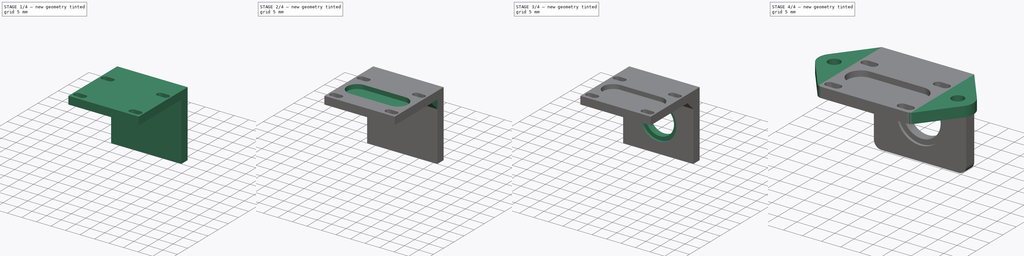
[diagram: build sequence overview — one tinted view per stage of 4, left to right]
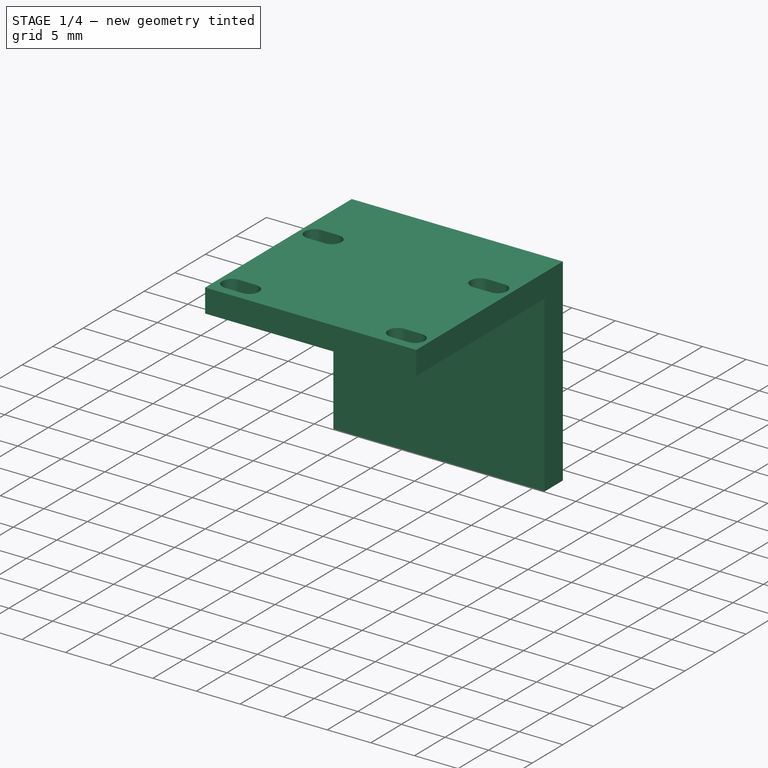
[diagram: stage 1 of 4 — iso view after this stage's code; geometry added in this stage tinted green]
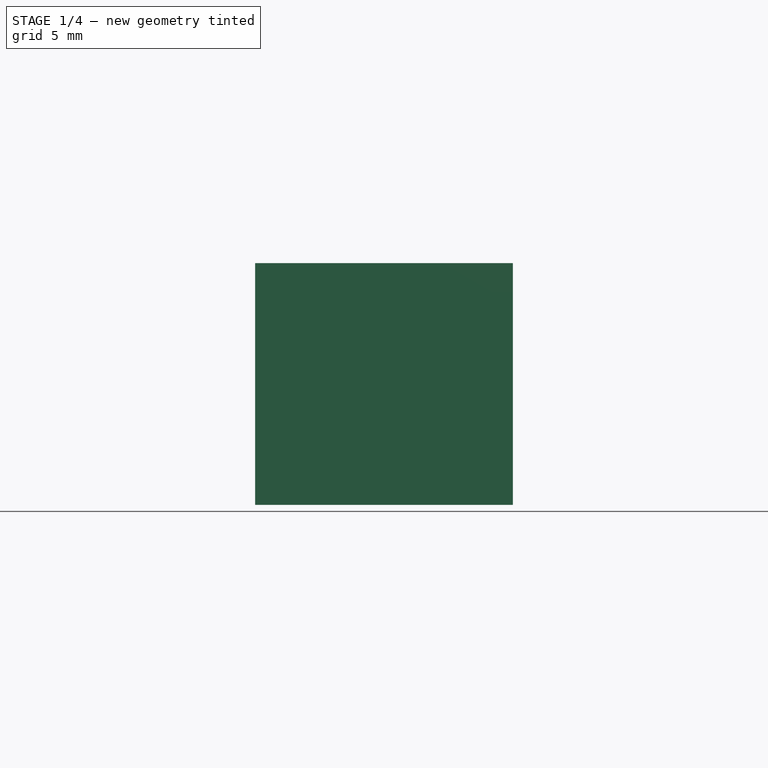
[diagram: stage 1 of 4 — front view after this stage's code; geometry added in this stage tinted green]
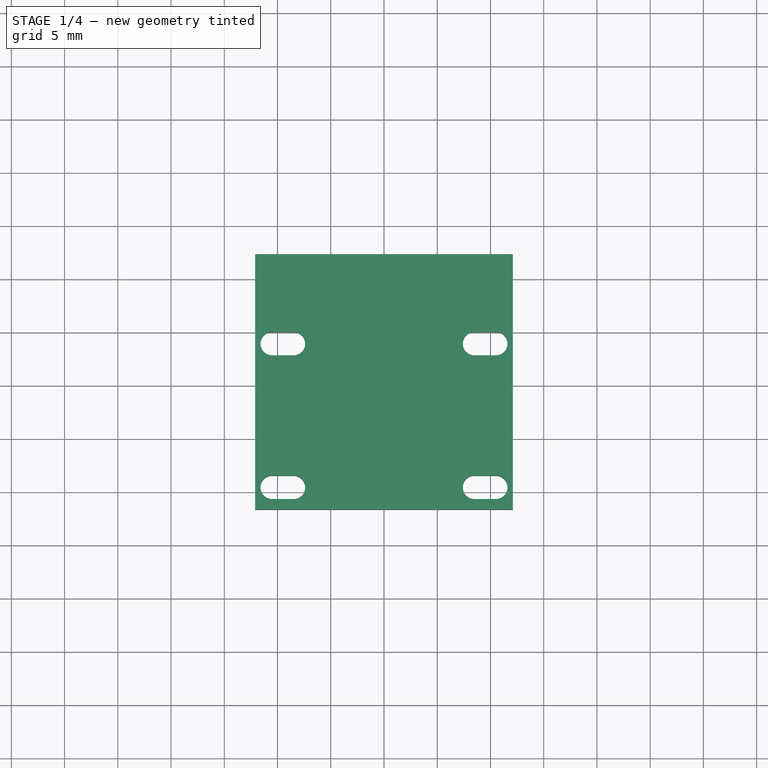
[diagram: stage 1 of 4 — top view after this stage's code; geometry added in this stage tinted green]
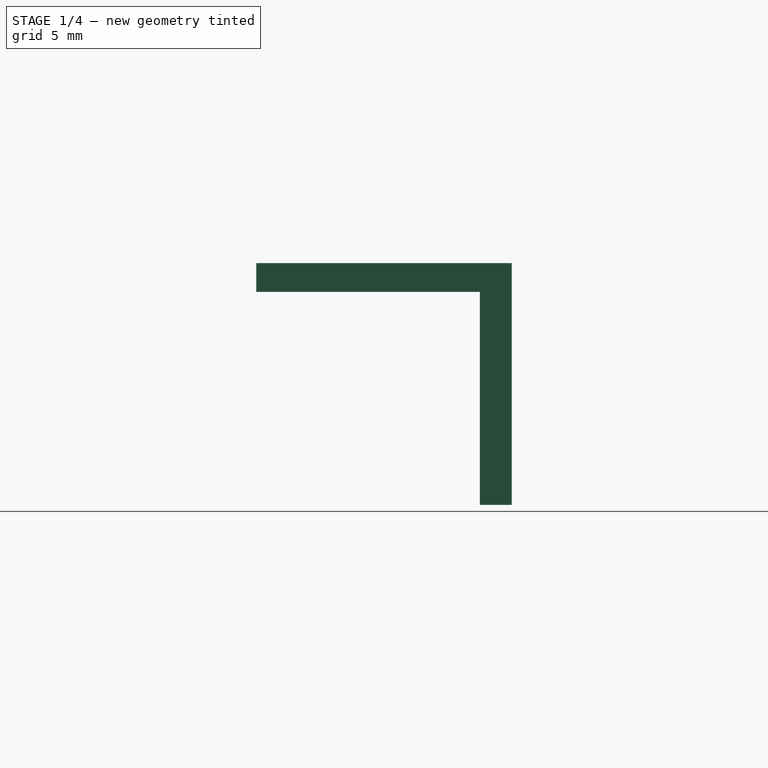
[diagram: stage 1 of 4 — right view after this stage's code; geometry added in this stage tinted green]
FCSTD DOCUMENT  (FreeCAD 0.20R29603 (Git))
Label: case-cam-base
License: All rights reserved
LicenseURL: http://en.wikipedia.org/wiki/All_rights_reserved
objects: Sketcher::SketchObject×8, PartDesign::Pocket×5, PartDesign::Pad×3, PartDesign::Chamfer×1, PartDesign::Fillet×1, PartDesign::Body×1
note: 29 computed .brp shape members not serialized (recipe doc carries the construction recipe); baked Part::Feature solids carry a one-line shape summary decoded from their .brp

FEATURE [Sketcher::SketchObject] Sketch
  FullyConstrained = true
  MapMode = 5
  Support = -> [XY_Plane]
  sketch-geometry (30):
    g0: LineSegment StartX=-12.1 StartY=12 StartZ=0 EndX=12.1 EndY=12 EndZ=0
    g1: LineSegment StartX=12.1 StartY=12 StartZ=0 EndX=12.1 EndY=-12 EndZ=0
    g2: LineSegment StartX=12.1 StartY=-12 StartZ=0 EndX=-12.1 EndY=-12 EndZ=0
    g3: LineSegment StartX=-12.1 StartY=-12 StartZ=0 EndX=-12.1 EndY=12 EndZ=0
    g4: LineSegment StartX=-10.5 StartY=3.6 StartZ=0 EndX=10.5 EndY=3.6 EndZ=0
    g5: LineSegment StartX=10.5 StartY=3.6 StartZ=0 EndX=10.5 EndY=-9.9 EndZ=0
    g6: LineSegment StartX=10.5 StartY=-9.9 StartZ=0 EndX=-10.5 EndY=-9.9 EndZ=0
    g7: LineSegment StartX=-10.5 StartY=-9.9 StartZ=0 EndX=-10.5 EndY=3.6 EndZ=0
    g8: Circle CenterX=-10.5 CenterY=3.6 CenterZ=0 NormalX=0 NormalY=0 NormalZ=1 AngleXU=0 Radius=1.1
    g9: Circle CenterX=-10.5 CenterY=-9.9 CenterZ=0 NormalX=0 NormalY=0 NormalZ=1 AngleXU=0 Radius=1.1
    g10: Circle CenterX=10.5 CenterY=-9.9 CenterZ=0 NormalX=0 NormalY=0 NormalZ=1 AngleXU=0 Radius=1.1
    g11: Circle CenterX=10.5 CenterY=3.6 CenterZ=0 NormalX=0 NormalY=0 NormalZ=1 AngleXU=0 Radius=1.1
    g12: GeomPoint X=-11.6 Y=3.6 Z=0
    g13: GeomPoint X=-12.1 Y=3.6 Z=0
    g14: ArcOfCircle CenterX=-10.5 CenterY=3.6 CenterZ=0 NormalX=0 NormalY=0 NormalZ=1 AngleXU=0 Radius=1.1 StartAngle=1.5708 EndAngle=4.71239
    g15: ArcOfCircle CenterX=-8.5 CenterY=3.6 CenterZ=0 NormalX=0 NormalY=0 NormalZ=1 AngleXU=0 Radius=1.1 StartAngle=4.71239 EndAngle=7.85398
    g16: LineSegment StartX=-10.5 StartY=2.5 StartZ=0 EndX=-8.5 EndY=2.5 EndZ=0
    g17: LineSegment StartX=-8.5 StartY=4.7 StartZ=0 EndX=-10.5 EndY=4.7 EndZ=0
    g18: ArcOfCircle CenterX=-10.5 CenterY=-9.9 CenterZ=0 NormalX=0 NormalY=0 NormalZ=1 AngleXU=0 Radius=1.1 StartAngle=1.5708 EndAngle=4.71239
    g19: ArcOfCircle CenterX=-8.5 CenterY=-9.9 CenterZ=0 NormalX=0 NormalY=0 NormalZ=1 AngleXU=0 Radius=1.1 StartAngle=4.71239 EndAngle=7.85398
    g20: LineSegment StartX=-10.5 StartY=-11 StartZ=0 EndX=-8.5 EndY=-11 EndZ=0
    g21: LineSegment StartX=-8.5 StartY=-8.8 StartZ=0 EndX=-10.5 EndY=-8.8 EndZ=0
    g22: ArcOfCircle CenterX=10.5 CenterY=-9.9 CenterZ=0 NormalX=0 NormalY=0 NormalZ=1 AngleXU=0 Radius=1.1 StartAngle=4.71239 EndAngle=7.85398
    g23: ArcOfCircle CenterX=8.5 CenterY=-9.9 CenterZ=0 NormalX=0 NormalY=0 NormalZ=1 AngleXU=0 Radius=1.1 StartAngle=1.5708 EndAngle=4.71239
    g24: LineSegment StartX=10.5 StartY=-8.8 StartZ=0 EndX=8.5 EndY=-8.8 EndZ=0
    g25: LineSegment StartX=8.5 StartY=-11 StartZ=0 EndX=10.5 EndY=-11 EndZ=0
    g26: ArcOfCircle CenterX=10.5 CenterY=3.6 CenterZ=0 NormalX=0 NormalY=0 NormalZ=1 AngleXU=0 Radius=1.1 StartAngle=4.71239 EndAngle=7.85398
    g27: ArcOfCircle CenterX=8.5 CenterY=3.6 CenterZ=0 NormalX=0 NormalY=0 NormalZ=1 AngleXU=0 Radius=1.1 StartAngle=1.5708 EndAngle=4.71239
    g28: LineSegment StartX=10.5 StartY=4.7 StartZ=0 EndX=8.5 EndY=4.7 EndZ=0
    g29: LineSegment StartX=8.5 StartY=2.5 StartZ=0 EndX=10.5 EndY=2.5 EndZ=0
  constraints (69):
    c: Coincident(g0,g1)
    c: Coincident(g1,g2)
    c: Coincident(g2,g3)
    c: Coincident(g3,g0)
    c: Horizontal(g2)
    c: Vertical(g1)
    c: Symmetric(g0,g2,g-1)
    c: Symmetric(g0,g0,g-2)
    c: Coincident(g4,g5)
    c: Coincident(g5,g6)
    c: Coincident(g6,g7)
    c: Coincident(g7,g4)
    c: Horizontal(g6)
    c: Vertical(g5)
    c: Vertical(g7)
    c: Symmetric(g4,g4,g-2)
    c: Coincident(g8,g4)
    c: Coincident(g9,g6)
    c: Coincident(g10,g5)
    c: Coincident(g11,g4)
    c: Equal(g11,g10)
    c: Equal(g10,g9)
    c: Equal(g9,g8)
    c: DistanceY(g7,g7) = 13.5
    c: Diameter(g8) = 2.2
    c: PointOnObject(g12,g8)
    c: Horizontal(g12,g8)
    c: PointOnObject(g13,g3)
    c: Horizontal(g13,g8)
    c: DistanceX(g13,g12) = 0.5
    c: Tangent(g14,g16) = -1.5708
    c: Tangent(g16,g15) = -1.5708
    c: Tangent(g15,g17) = -1.5708
    c: Tangent(g17,g14) = -1.5708
    c: Equal(g14,g15)
    c: Coincident(g14,g4)
    c: PointOnObject(g15,g4)
    c: Tangent(g18,g20) = -1.5708
    c: Tangent(g20,g19) = -1.5708
    c: Tangent(g19,g21) = -1.5708
    c: Tangent(g21,g18) = -1.5708
    c: Equal(g18,g19)
    c: Coincident(g18,g6)
    c: Tangent(g22,g24) = -1.5708
    c: Tangent(g24,g23) = -1.5708
    c: Tangent(g23,g25) = -1.5708
    c: Tangent(g25,g22) = -1.5708
    c: Equal(g22,g23)
    c: Coincident(g22,g5)
    c: Tangent(g26,g28) = -1.5708
    c: Tangent(g28,g27) = -1.5708
    c: Tangent(g27,g29) = -1.5708
    c: Tangent(g29,g26) = -1.5708
    c: Equal(g26,g27)
    c: Coincident(g26,g4)
    c: Equal(g26,g11)
    c: Equal(g11,g22)
    c: Equal(g22,g18)
    c: Equal(g18,g14)
    c: PointOnObject(g19,g6)
    c: PointOnObject(g23,g6)
    c: PointOnObject(g27,g4)
    c: Equal(g29,g16)
    c: Equal(g16,g21)
    c: Equal(g21,g24)
    c: DistanceX(g25,g25) = 2
    c: DistanceX(g6,g6) = 21
    c: DistanceY(g1,g1) = 24
    c: DistanceY(g1,g22) = 1
FEATURE [PartDesign::Pad] Pad
  Direction = (0,0,1)
  Length = 2.7
  Length2 = 10
  Profile = -> Sketch
  ReferenceAxis = -> Sketch [N_Axis]
  Type = 0
FEATURE [Sketcher::SketchObject] Sketch001
  ExternalGeometry = -> [Pad]
  FullyConstrained = true
  MapMode = 5
  Placement = pos=(0,0,0) rot=(1,0,0;3.14159rad)
  Support = -> [Pad]
  sketch-geometry (4):
    g0: LineSegment StartX=-12.1 StartY=-9 StartZ=0 EndX=12.1 EndY=-9 EndZ=0
    g1: LineSegment StartX=12.1 StartY=-9 StartZ=0 EndX=12.1 EndY=-12 EndZ=0
    g2: LineSegment StartX=12.1 StartY=-12 StartZ=0 EndX=-12.1 EndY=-12 EndZ=0
    g3: LineSegment StartX=-12.1 StartY=-12 StartZ=0 EndX=-12.1 EndY=-9 EndZ=0
  constraints (12):
    c: Coincident(g0,g1)
    c: Coincident(g1,g2)
    c: Coincident(g2,g3)
    c: Coincident(g3,g0)
    c: Horizontal(g0)
    c: Horizontal(g2)
    c: Vertical(g1)
    c: Vertical(g3)
    c: PointOnObject(g-3,g3)
    c: PointOnObject(g-3,g1)
    c: PointOnObject(g1,g-3)
    c: DistanceY(g3,g3) = 3
FEATURE [PartDesign::Pad] Pad001
  BaseFeature = -> Pad
  Direction = (0,0,-1)
  Length = 20
  Length2 = 10
  Profile = -> Sketch001
  ReferenceAxis = -> Sketch001 [N_Axis]
  Type = 0
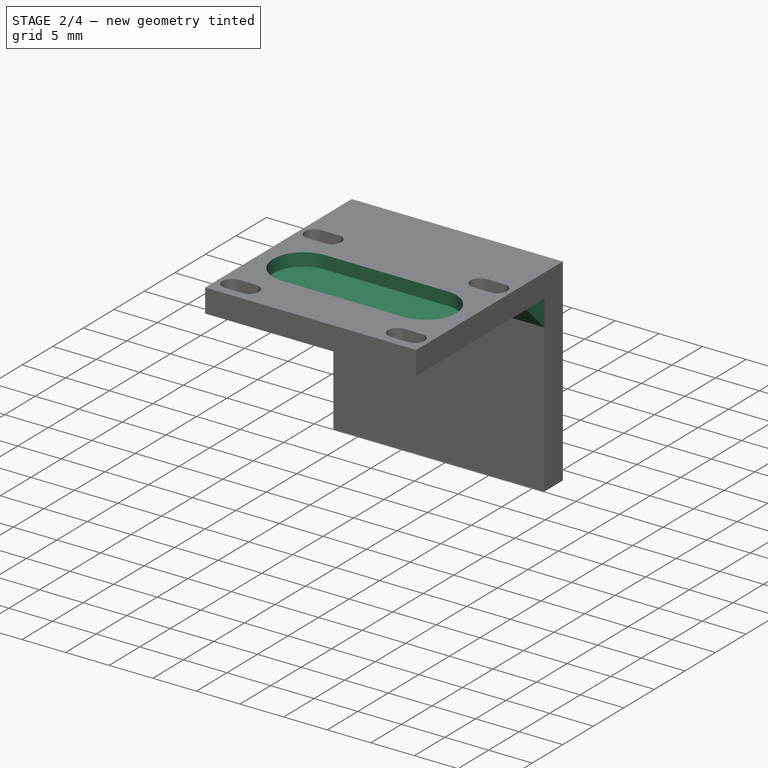
[diagram: stage 2 of 4 — iso view after this stage's code; geometry added in this stage tinted green]
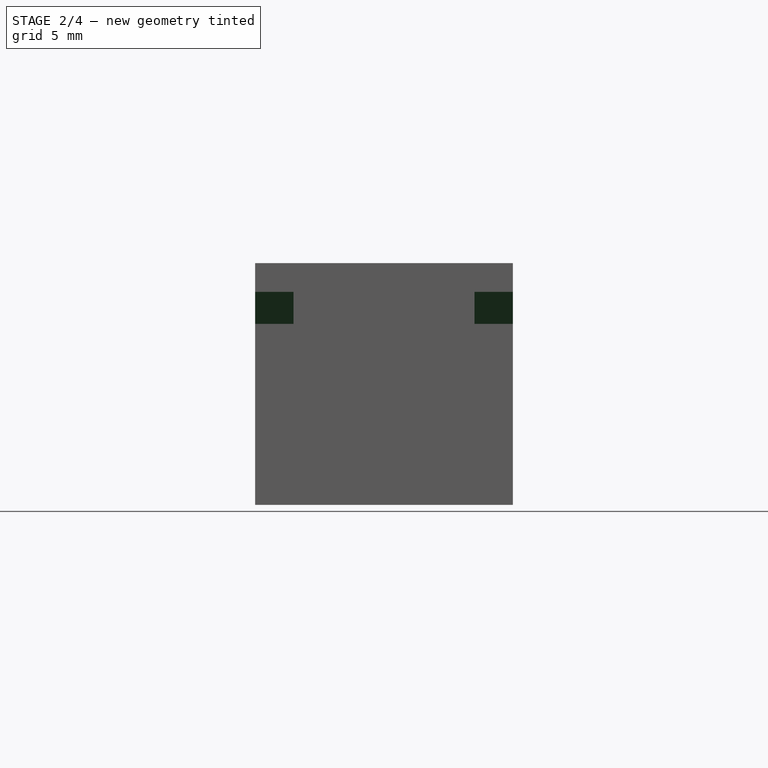
[diagram: stage 2 of 4 — front view after this stage's code; geometry added in this stage tinted green]
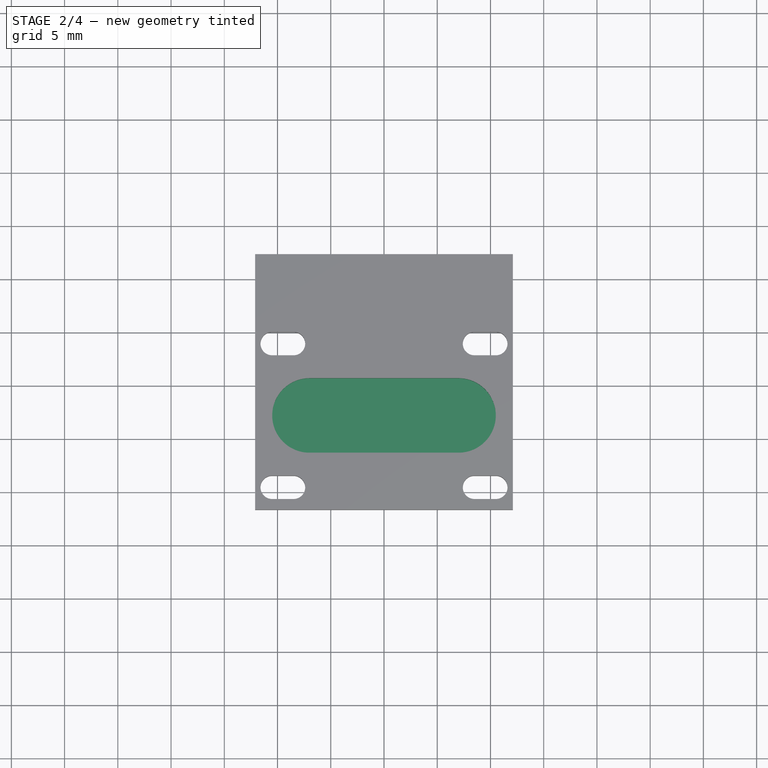
[diagram: stage 2 of 4 — top view after this stage's code; geometry added in this stage tinted green]
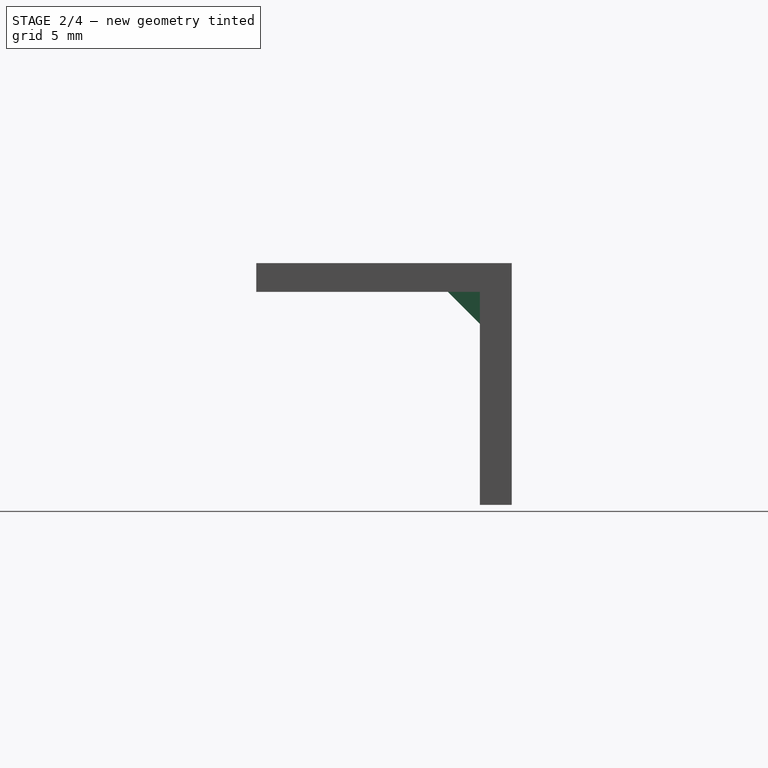
[diagram: stage 2 of 4 — right view after this stage's code; geometry added in this stage tinted green]
FEATURE [Sketcher::SketchObject] Sketch002
  ExternalGeometry = -> [Pad001]
  FullyConstrained = true
  MapMode = 5
  Placement = pos=(0,0,2.7) rot=(0,0,1;0rad)
  Support = -> [Pad001]
  sketch-geometry (7):
    g0: ArcOfCircle CenterX=-7 CenterY=-3.15 CenterZ=0 NormalX=0 NormalY=0 NormalZ=1 AngleXU=0 Radius=3.5 StartAngle=1.5708 EndAngle=4.71239
    g1: ArcOfCircle CenterX=7 CenterY=-3.15 CenterZ=0 NormalX=0 NormalY=0 NormalZ=1 AngleXU=0 Radius=3.5 StartAngle=4.71239 EndAngle=7.85398
    g2: LineSegment StartX=-7 StartY=-6.65 StartZ=0 EndX=7 EndY=-6.65 EndZ=0
    g3: LineSegment StartX=7 StartY=0.35 StartZ=0 EndX=-7 EndY=0.35 EndZ=0
    g4: LineSegment StartX=-10.5 StartY=3.6 StartZ=0 EndX=-10.5 EndY=-9.9 EndZ=0
    g5: LineSegment StartX=10.5 StartY=-9.9 StartZ=0 EndX=10.5 EndY=3.6 EndZ=0
    g6: LineSegment StartX=-10.5 StartY=-3.15 StartZ=0 EndX=10.5 EndY=-3.15 EndZ=0
  constraints (17):
    c: Tangent(g0,g2) = -1.5708
    c: Tangent(g2,g1) = -1.5708
    c: Tangent(g1,g3) = -1.5708
    c: Tangent(g3,g0) = -1.5708
    c: Equal(g0,g1)
    c: Horizontal(g2)
    c: Coincident(g4,g-3)
    c: Coincident(g5,g-5)
    c: Coincident(g5,g-6)
    c: Coincident(g4,g-4)
    c: Tangent(g0,g4)
    c: Tangent(g1,g5)
    c: PointOnObject(g6,g5)
    c: PointOnObject(g6,g4)
    c: Symmetric(g4,g4,g6)
    c: PointOnObject(g0,g6)
    c: Diameter(g0) = 7
FEATURE [PartDesign::Pocket] Pocket
  BaseFeature = -> Pad001
  Direction = (0,0,-1)
  Length = 1.5
  Length2 = 5
  Profile = -> Sketch002
  ReferenceAxis = -> Sketch002 [N_Axis]
  Type = 0
FEATURE [PartDesign::Chamfer] Chamfer
  Angle = 45
  Base = -> Pocket [Edge38]
  BaseFeature = -> Pocket
  ChamferType = 0
  FlipDirection = false
  Size = 3
  Size2 = 1
  SupportTransform = false
  UseAllEdges = false
FEATURE [Sketcher::SketchObject] Sketch003
  ExternalGeometry = -> [Chamfer]
  FullyConstrained = true
  MapMode = 5
  Placement = pos=(0,9,0) rot=(1,0,0;1.5708rad)
  Support = -> [Chamfer]
  sketch-geometry (4):
    g0: LineSegment StartX=-8.5 StartY=-4.7e-15 StartZ=0 EndX=8.5 EndY=-4.7e-15 EndZ=0
    g1: LineSegment StartX=8.5 StartY=-4.7e-15 StartZ=0 EndX=8.5 EndY=-3 EndZ=0
    g2: LineSegment StartX=8.5 StartY=-3 StartZ=0 EndX=-8.5 EndY=-3 EndZ=0
    g3: LineSegment StartX=-8.5 StartY=-3 StartZ=0 EndX=-8.5 EndY=-4.4e-15 EndZ=0
  constraints (11):
    c: Coincident(g0,g1)
    c: Coincident(g1,g2)
    c: Coincident(g2,g3)
    c: Coincident(g3,g0)
    c: Horizontal(g0)
    c: Vertical(g1)
    c: Vertical(g3)
    c: PointOnObject(g0,g-3)
    c: Symmetric(g1,g2,g-2)
    c: DistanceX(g2,g2) = 17
    c: PointOnObject(g1,g-4)
FEATURE [PartDesign::Pocket] Pocket001
  BaseFeature = -> Chamfer
  Direction = (0,1,-2e-16)
  Length = 5
  Length2 = 5
  Profile = -> Sketch003
  ReferenceAxis = -> Sketch003 [N_Axis]
  Reversed = true
  Type = 1
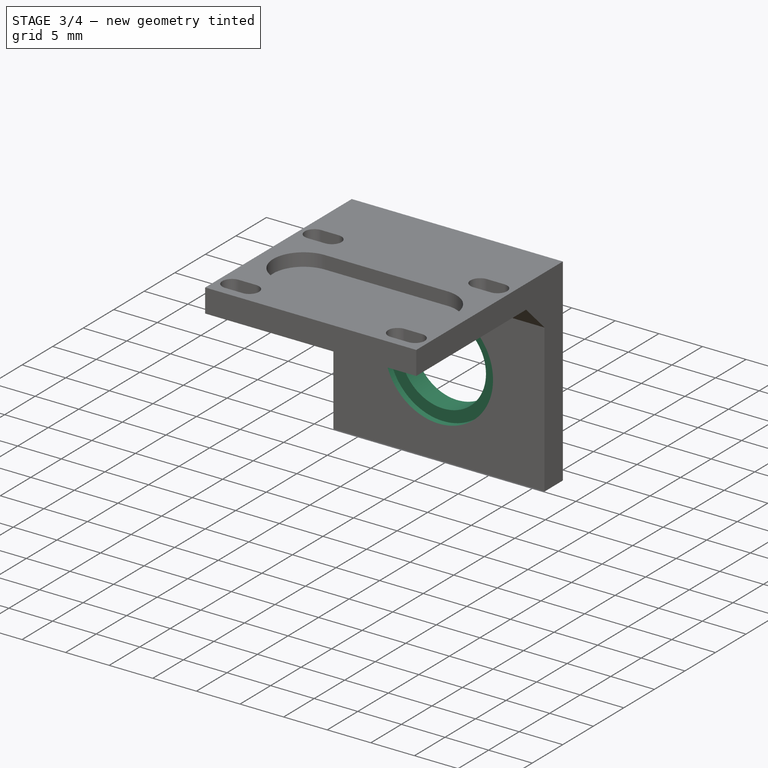
[diagram: stage 3 of 4 — iso view after this stage's code; geometry added in this stage tinted green]
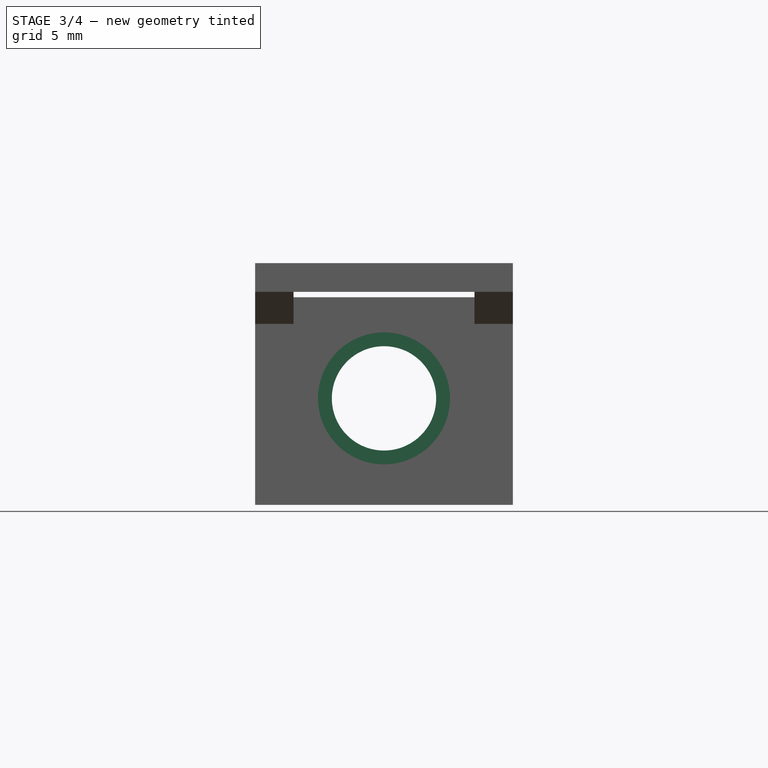
[diagram: stage 3 of 4 — front view after this stage's code; geometry added in this stage tinted green]
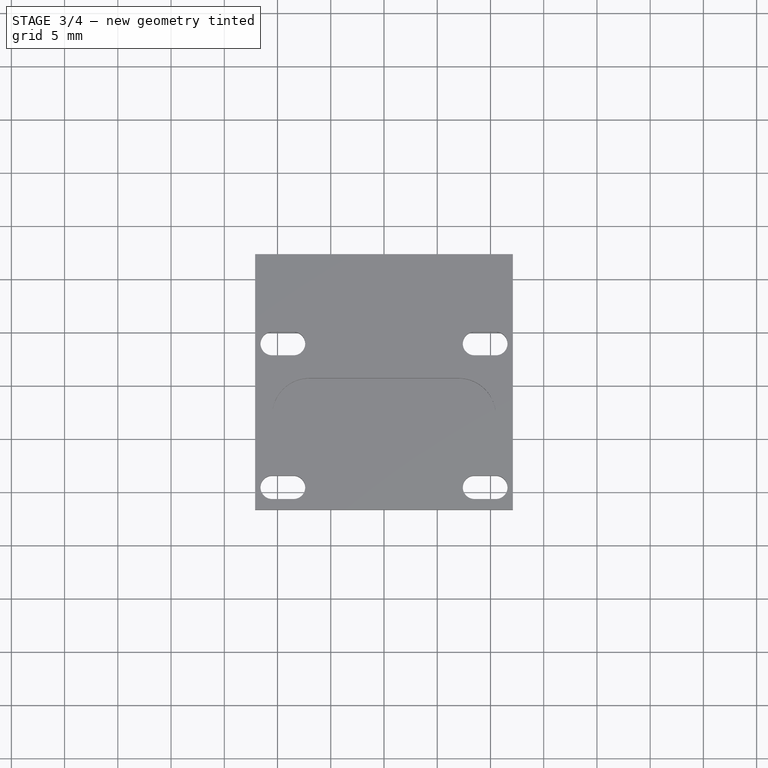
[diagram: stage 3 of 4 — top view after this stage's code; geometry added in this stage tinted green]
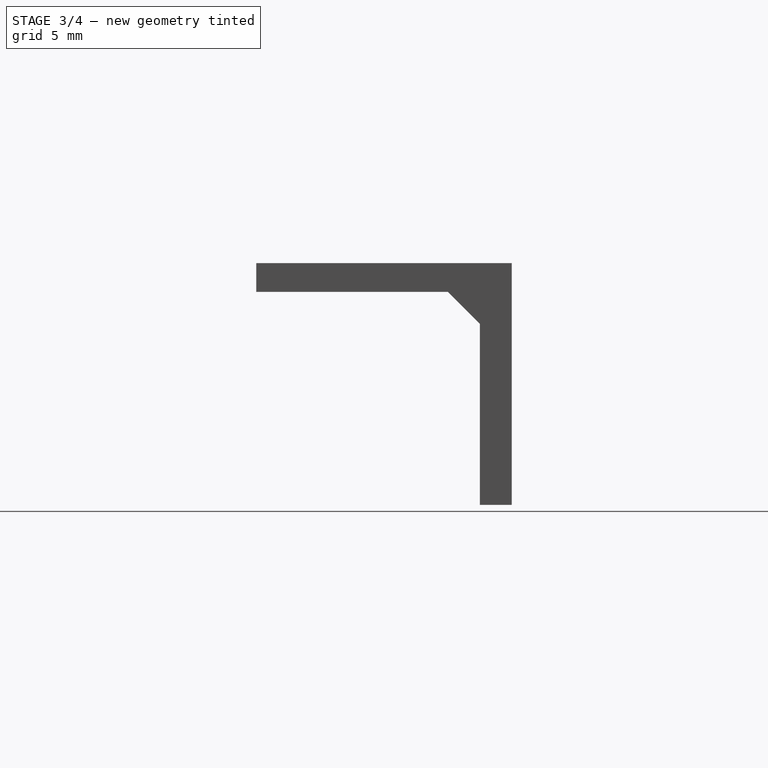
[diagram: stage 3 of 4 — right view after this stage's code; geometry added in this stage tinted green]
FEATURE [Sketcher::SketchObject] Sketch004
  ExternalGeometry = -> [Pocket001]
  FullyConstrained = true
  MapMode = 5
  Placement = pos=(0,12,0) rot=(0,0.707107,0.707107;3.14159rad)
  Support = -> [Pocket001]
  sketch-geometry (4):
    g0: LineSegment StartX=-8.5 StartY=0.5 StartZ=0 EndX=8.5 EndY=0.5 EndZ=0
    g1: LineSegment StartX=8.5 StartY=0.5 StartZ=0 EndX=8.5 EndY=-0.5 EndZ=0
    g2: LineSegment StartX=8.5 StartY=-0.5 StartZ=0 EndX=-8.5 EndY=-0.5 EndZ=0
    g3: LineSegment StartX=-8.5 StartY=-0.5 StartZ=0 EndX=-8.5 EndY=0.5 EndZ=0
  constraints (10):
    c: Coincident(g0,g1)
    c: Coincident(g1,g2)
    c: Coincident(g2,g3)
    c: Coincident(g3,g0)
    c: Horizontal(g2)
    c: Vertical(g1)
    c: DistanceY(g3,g3) = 1
    c: Symmetric(g2,g0,g-1)
    c: Symmetric(g0,g0,g-2)
    c: PointOnObject(g2,g-3)
FEATURE [PartDesign::Pocket] Pocket002
  BaseFeature = -> Pocket001
  Direction = (0,-1,2e-16)
  Length = 6
  Length2 = 5
  Profile = -> Sketch004
  ReferenceAxis = -> Sketch004 [N_Axis]
  Type = 0
FEATURE [Sketcher::SketchObject] Sketch005
  ExternalGeometry = -> [Pocket002]
  FullyConstrained = true
  MapMode = 5
  Placement = pos=(0,12,0) rot=(0,0.707107,0.707107;3.14159rad)
  Support = -> [Pocket002]
  sketch-geometry (6):
    g0: LineSegment StartX=-12.1 StartY=0 StartZ=0 EndX=12.1 EndY=0 EndZ=0
    g1: LineSegment StartX=12.1 StartY=0 StartZ=0 EndX=12.1 EndY=-20 EndZ=0
    g2: LineSegment StartX=12.1 StartY=-20 StartZ=0 EndX=-12.1 EndY=-20 EndZ=0
    g3: LineSegment StartX=-12.1 StartY=-20 StartZ=0 EndX=-12.1 EndY=0 EndZ=0
    g4: Circle CenterX=0 CenterY=-10 CenterZ=0 NormalX=0 NormalY=0 NormalZ=1 AngleXU=0 Radius=15.6975
    g5: Circle CenterX=0 CenterY=-10 CenterZ=0 NormalX=0 NormalY=0 NormalZ=1 AngleXU=0 Radius=4.9
  constraints (16):
    c: Coincident(g0,g1)
    c: Coincident(g1,g2)
    c: Coincident(g2,g3)
    c: Coincident(g3,g0)
    c: Horizontal(g0)
    c: Horizontal(g2)
    c: Vertical(g1)
    c: Vertical(g3)
    c: Coincident(g-3,g1)
    c: DistanceY(g3,g3) = 20
    c: PointOnObject(g-3,g3)
    c: PointOnObject(g0,g4)
    c: PointOnObject(g2,g4)
    c: PointOnObject(g0,g4)
    c: Coincident(g5,g4)
    c: Diameter(g5) = 9.8
FEATURE [PartDesign::Pocket] Pocket003
  BaseFeature = -> Pocket002
  Direction = (0,-1,2e-16)
  Length = 2.3
  Length2 = 5
  Profile = -> Sketch005
  ReferenceAxis = -> Sketch005 [N_Axis]
  Type = 0
FEATURE [Sketcher::SketchObject] Sketch006
  ExternalGeometry = -> [Pocket003]
  FullyConstrained = true
  MapMode = 5
  Placement = pos=(0,9,0) rot=(1,0,0;1.5708rad)
  Support = -> [Pocket003]
  sketch-geometry (1):
    g0: Circle CenterX=0 CenterY=-10 CenterZ=0 NormalX=0 NormalY=0 NormalZ=1 AngleXU=0 Radius=6.2
  constraints (2):
    c: Coincident(g0,g-3)
    c: Diameter(g0) = 12.4
FEATURE [PartDesign::Pocket] Pocket004
  BaseFeature = -> Pocket003
  Direction = (0,1,-2e-16)
  Length = 5
  Length2 = 5
  Profile = -> Sketch006
  ReferenceAxis = -> Sketch006 [N_Axis]
  Type = 2
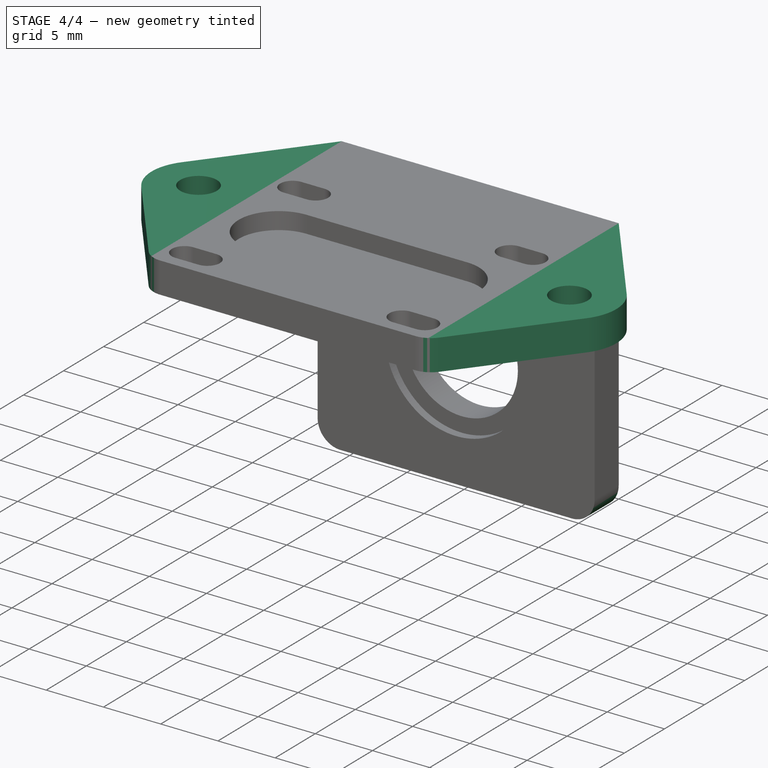
[diagram: stage 4 of 4 — iso view after this stage's code; geometry added in this stage tinted green]
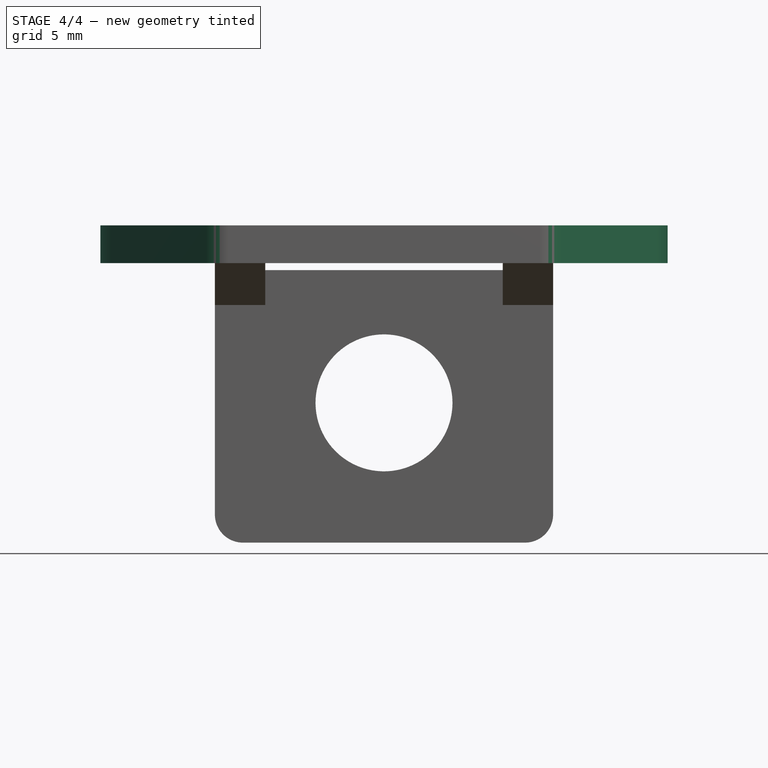
[diagram: stage 4 of 4 — front view after this stage's code; geometry added in this stage tinted green]
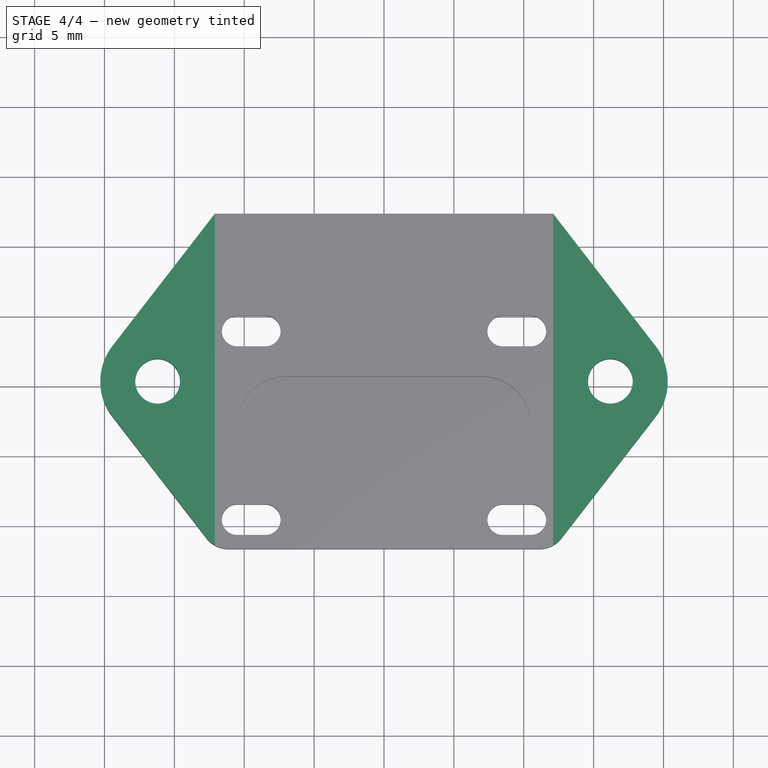
[diagram: stage 4 of 4 — top view after this stage's code; geometry added in this stage tinted green]
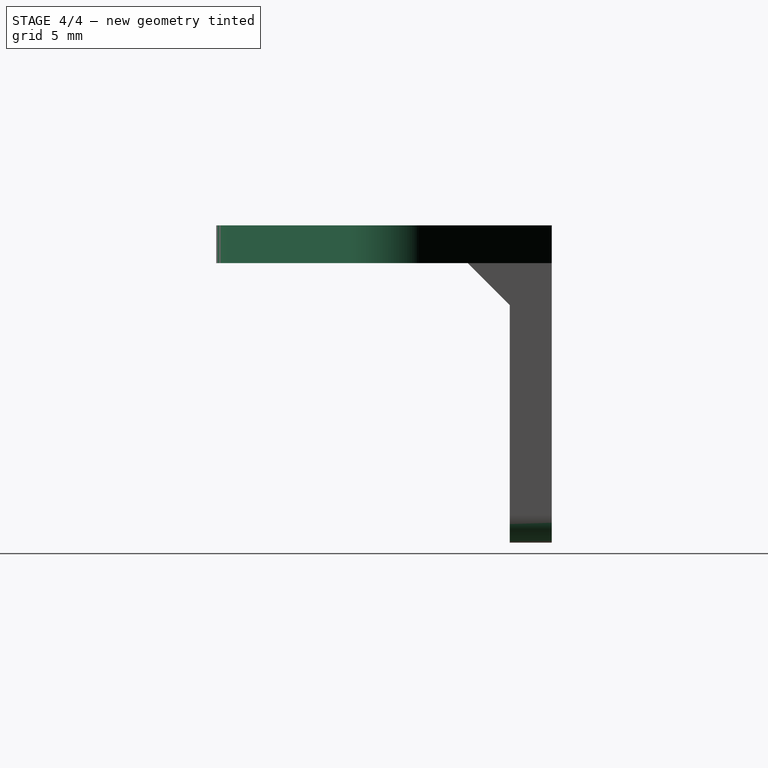
[diagram: stage 4 of 4 — right view after this stage's code; geometry added in this stage tinted green]
FEATURE [Sketcher::SketchObject] Sketch007
  ExternalGeometry = -> [Pocket004]
  FullyConstrained = true
  MapMode = 5
  Placement = pos=(0,0,2.7) rot=(0,0,1;0rad)
  Support = -> [Pocket004]
  sketch-geometry (14):
    g0: ArcOfCircle CenterX=-16.2 CenterY=0 CenterZ=0 NormalX=0 NormalY=0 NormalZ=1 AngleXU=0 Radius=4.1 StartAngle=2.48313 EndAngle=3.80006
    g1: Circle CenterX=-16.2 CenterY=0 CenterZ=0 NormalX=0 NormalY=0 NormalZ=1 AngleXU=0 Radius=1.6
    g2: ArcOfCircle CenterX=16.2 CenterY=0 CenterZ=0 NormalX=0 NormalY=0 NormalZ=1 AngleXU=0 Radius=4.1 StartAngle=5.62472 EndAngle=6.94165
    g3: Circle CenterX=16.2 CenterY=0 CenterZ=0 NormalX=0 NormalY=0 NormalZ=1 AngleXU=0 Radius=1.6
    g4: GeomPoint X=-14.6 Y=0 Z=0
    g5: GeomPoint X=-12.1 Y=0 Z=0
    g6: LineSegment StartX=-12.1 StartY=12 StartZ=0 EndX=-19.4428 EndY=2.5088 EndZ=0
    g7: LineSegment StartX=-12.1 StartY=-12 StartZ=0 EndX=-19.4428 EndY=-2.5088 EndZ=0
    g8: LineSegment StartX=12.1 StartY=-12 StartZ=0 EndX=19.4428 EndY=-2.5088 EndZ=0
    g9: LineSegment StartX=12.1 StartY=12 StartZ=0 EndX=19.4428 EndY=2.5088 EndZ=0
    g10: Circle CenterX=-16.2 CenterY=0 CenterZ=0 NormalX=0 NormalY=0 NormalZ=1 AngleXU=0 Radius=4.1
    g11: Circle CenterX=16.2 CenterY=0 CenterZ=0 NormalX=0 NormalY=0 NormalZ=1 AngleXU=0 Radius=4.1
    g12: LineSegment StartX=-12.1 StartY=-12 StartZ=0 EndX=-12.1 EndY=12 EndZ=0
    g13: LineSegment StartX=12.1 StartY=12 StartZ=0 EndX=12.1 EndY=-12 EndZ=0
  constraints (30):
    c: PointOnObject(g0,g-1)
    c: Coincident(g1,g0)
    c: PointOnObject(g2,g-1)
    c: Coincident(g3,g2)
    c: PointOnObject(g5,g0)
    c: PointOnObject(g5,g-1)
    c: PointOnObject(g4,g1)
    c: PointOnObject(g4,g-1)
    c: DistanceX(g4,g5) = 2.5
    c: Diameter(g1) = 3.2
    c: Equal(g1,g3)
    c: Equal(g0,g2)
    c: Coincident(g6,g-4)
    c: Coincident(g7,g-4)
    c: Coincident(g8,g-3)
    c: Coincident(g9,g-3)
    c: Tangent(g2,g9) = 1.5708
    c: Tangent(g2,g8) = -1.5708
    c: Tangent(g0,g7) = 1.5708
    c: Tangent(g0,g6) = -1.5708
    c: PointOnObject(g5,g-4)
    c: Coincident(g10,g0)
    c: Equal(g0,g10)
    c: Coincident(g11,g2)
    c: Tangent(g11,g-3)
    c: Equal(g11,g10)
    c: Coincident(g12,g7)
    c: Coincident(g12,g6)
    c: Coincident(g13,g9)
    c: Coincident(g13,g8)
FEATURE [PartDesign::Pad] Pad002
  BaseFeature = -> Pocket004
  Direction = (0,0,1)
  Length = 10
  Length2 = 10
  Profile = -> Sketch007
  ReferenceAxis = -> Sketch007 [N_Axis]
  Reversed = true
  Type = 3
  UpToFace = -> Pocket004 [Face7]
FEATURE [PartDesign::Fillet] Fillet
  Base = -> Pad002 [Edge36,Edge37,Edge143,Edge91]
  BaseFeature = -> Pad002
  Radius = 2
  SupportTransform = false
  UseAllEdges = false
FEATURE [PartDesign::Body] Body
  Group = -> [Sketch,Pad,Sketch001,Pad001,Sketch002,Pocket,Chamfer,Sketch003,Pocket001,Sketch004,Pocket002,Sketch005,Pocket003,Sketch006,Pocket004,Sketch007,Pad002,Fillet]
  Origin = -> Origin
  Tip = -> Fillet
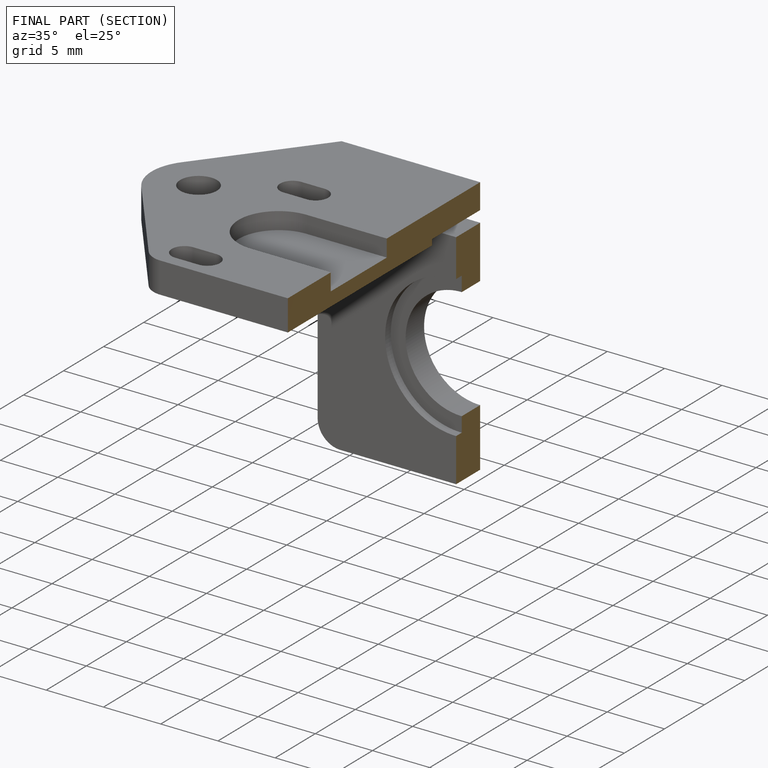
[diagram: finished part — half-section view (interior)]
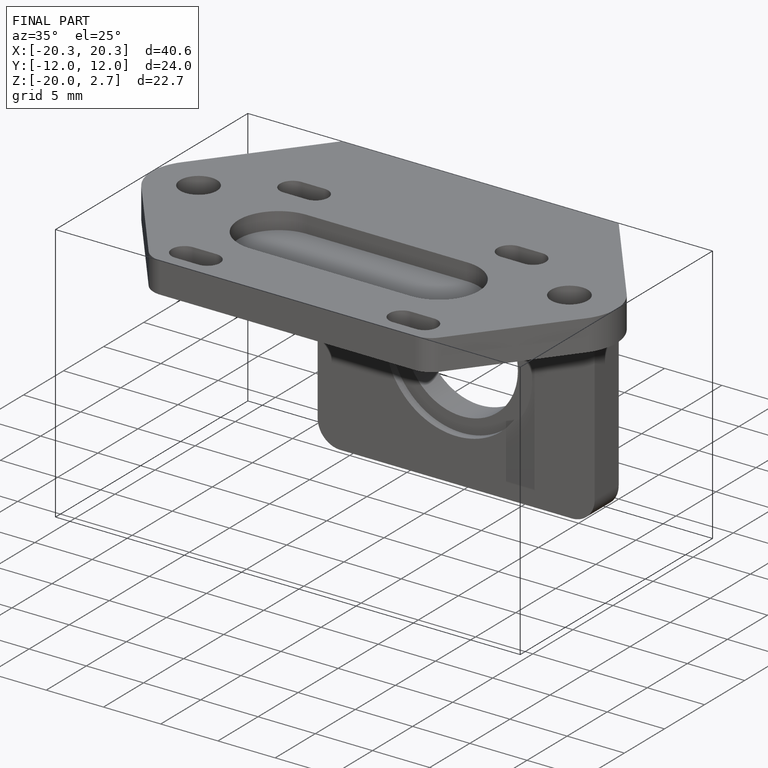
[diagram: finished part — iso view with bounding-box wireframe]
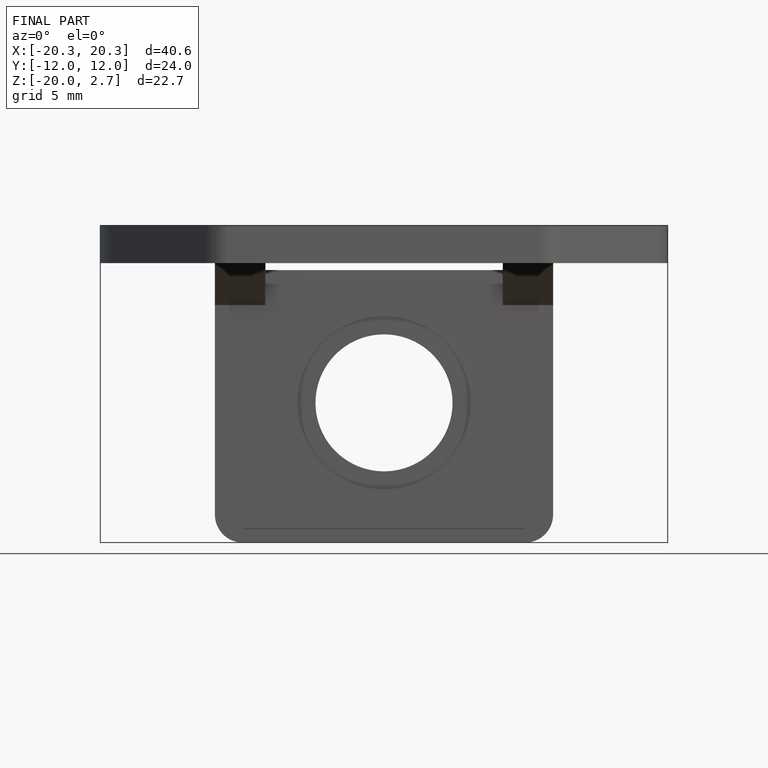
[diagram: finished part — front view with bounding-box wireframe]
